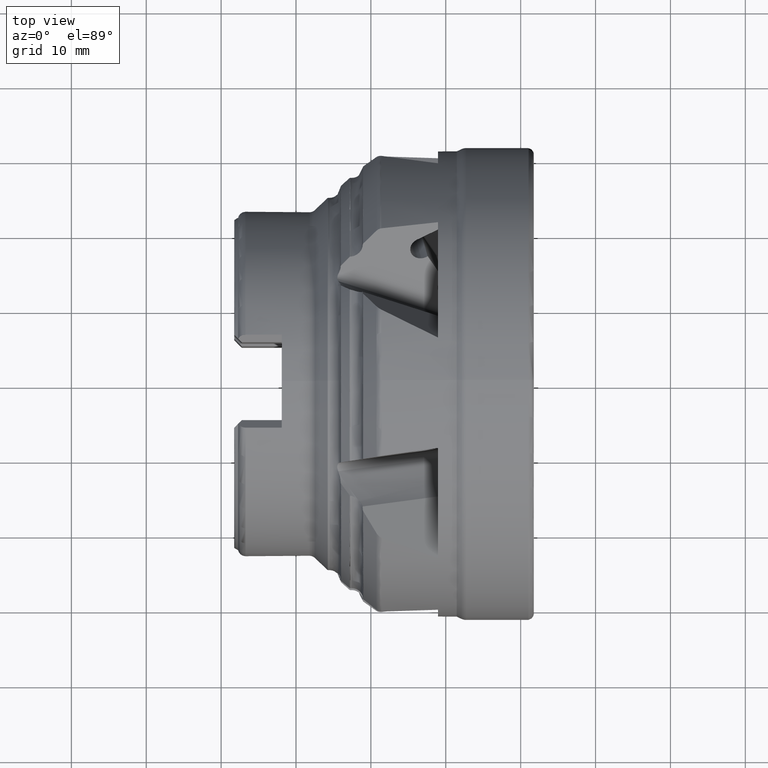
[diagram: clean part render]
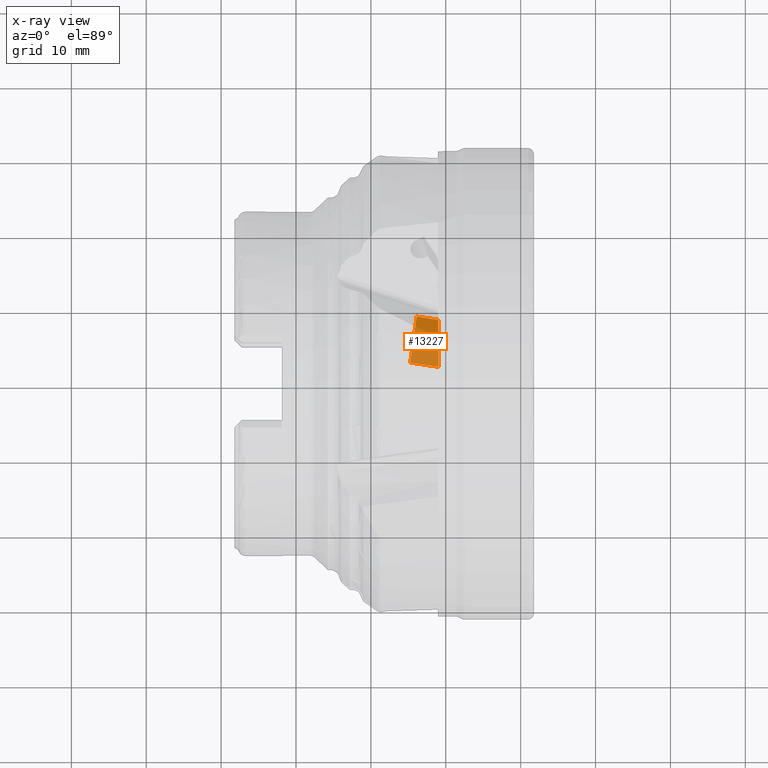
[diagram: x-ray — body ghosted, one internal face saturated and labeled with its STEP entity id]
A machine part, top view, then the same camera in x-ray: the body is ghosted and one INTERNAL B-rep face — a face not visible from any outside direction — is saturated and labeled: STEP entity #13227.
In plain terms, the highlighted planar face has unit normal (0.418, -0.0587, 0.9065).
Its self-contained STEP definition (entity closure, byte-faithful):
#195 = EDGE_CURVE ( 'NONE', #3253, #3326, #2980, .T. ) ;
#286 = ORIENTED_EDGE ( 'NONE', *, *, #6525, .T. ) ;
#295 = ORIENTED_EDGE ( 'NONE', *, *, #195, .T. ) ;
#297 = ORIENTED_EDGE ( 'NONE', *, *, #6706, .F. ) ;
#484 = ORIENTED_EDGE ( 'NONE', *, *, #6712, .F. ) ;
#882 = EDGE_LOOP ( 'NONE', ( #484, #286, #297, #295 ) ) ;
#2979 = VECTOR ( 'NONE', #10976, 1000.000000000000200 ) ;
#2980 = LINE ( 'NONE', #10974, #2979 ) ;
#3253 = VERTEX_POINT ( 'NONE', #11605 ) ;
#3326 = VERTEX_POINT ( 'NONE', #11678 ) ;
#3806 = VERTEX_POINT ( 'NONE', #5158 ) ;
#3811 = VERTEX_POINT ( 'NONE', #5162 ) ;
#5158 = CARTESIAN_POINT ( 'NONE',  ( -13.88992239531600100, 9.457791463898143300, -27.24214398614351000 ) ) ;
#5162 = CARTESIAN_POINT ( 'NONE',  ( -10.99198325676874100, 9.050512678449973000, -28.60476303728389900 ) ) ;
#6525 = EDGE_CURVE ( 'NONE', #3811, #3806, #6530, .T. ) ;
#6530 = LINE ( 'NONE', #8942, #6538 ) ;
#6538 = VECTOR ( 'NONE', #8943, 1000.000000000000200 ) ;
#6706 = EDGE_CURVE ( 'NONE', #3253, #3806, #6781, .T. ) ;
#6712 = EDGE_CURVE ( 'NONE', #3811, #3326, #8099, .T. ) ;
#6781 = LINE ( 'NONE', #9233, #6783 ) ;
#6783 = VECTOR ( 'NONE', #9234, 1000.000000000000100 ) ;
#8099 = B_SPLINE_CURVE_WITH_KNOTS ( 'NONE', 3,
 ( #9238, #9258, #9259, #9260 ),
 .UNSPECIFIED., .F., .F.,
 ( 4, 4 ),
 ( 0.0004084906426394609200, 0.006689201384948485100 ),
 .UNSPECIFIED. ) ;
#8942 = CARTESIAN_POINT ( 'NONE',  ( 5.664387931313569900, 6.709612368563970400, -36.43663514317101000 ) ) ;
#8943 = DIRECTION ( 'NONE',  ( -0.8977216317810694500, 0.1261665474609072500, 0.4221112106236087300 ) ) ;
#9233 = CARTESIAN_POINT ( 'NONE',  ( -14.58578790011634600, 4.506451120190291700, -27.24214398614351400 ) ) ;
#9234 = DIRECTION ( 'NONE',  ( 0.1391731009600688800, 0.9902680687415698100, 2.376571162088225200E-016 ) ) ;
#9238 = CARTESIAN_POINT ( 'NONE',  ( -10.99198325676874100, 9.050512678449973000, -28.60476303728389900 ) ) ;
#9258 = CARTESIAN_POINT ( 'NONE',  ( -10.96970711271350400, 6.962106083134685300, -28.75036890432188500 ) ) ;
#9259 = CARTESIAN_POINT ( 'NONE',  ( -10.95672573113643500, 4.873352830062873200, -28.89171146392389000 ) ) ;
#9260 = CARTESIAN_POINT ( 'NONE',  ( -10.95385127776098200, 2.784222628675935500, -29.02841819315821000 ) ) ;
#9539 = AXIS2_PLACEMENT_3D ( 'NONE', #12814, #12817, #12818 ) ;
#10974 = CARTESIAN_POINT ( 'NONE',  ( -9.704323881907001200, 2.608613005479099500, -29.61594945351652800 ) ) ;
#10976 = DIRECTION ( 'NONE',  ( 0.8977216317810694500, -0.1261665474609074700, -0.4221112106236087300 ) ) ;
#11605 = CARTESIAN_POINT ( 'NONE',  ( -14.75279562126842800, 3.318129437700405100, -27.24214398614351400 ) ) ;
#11678 = CARTESIAN_POINT ( 'NONE',  ( -10.95385127776098200, 2.784222628675935500, -29.02841819315821000 ) ) ;
#12814 = CARTESIAN_POINT ( 'NONE',  ( -9.537316160754921100, 3.796934687968985600, -29.61594945351652800 ) ) ;
#12815 = PLANE ( 'NONE',  #9539 ) ;
#12817 = DIRECTION ( 'NONE',  ( 0.4180032533384071500, -0.05874652613249661800, 0.9065440562189305300 ) ) ;
#12818 = DIRECTION ( 'NONE',  ( 0.9081124286335655600, 0.0000000000000000000, -0.4187264225735549700 ) ) ;
#13110 = FACE_OUTER_BOUND ( 'NONE', #882, .T. ) ;
#13227 = ADVANCED_FACE ( 'NONE', ( #13110 ), #12815, .T. ) ;